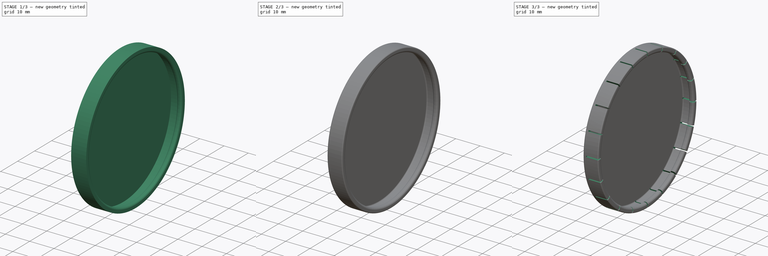
[diagram: build sequence overview — one tinted view per stage of 3, left to right]
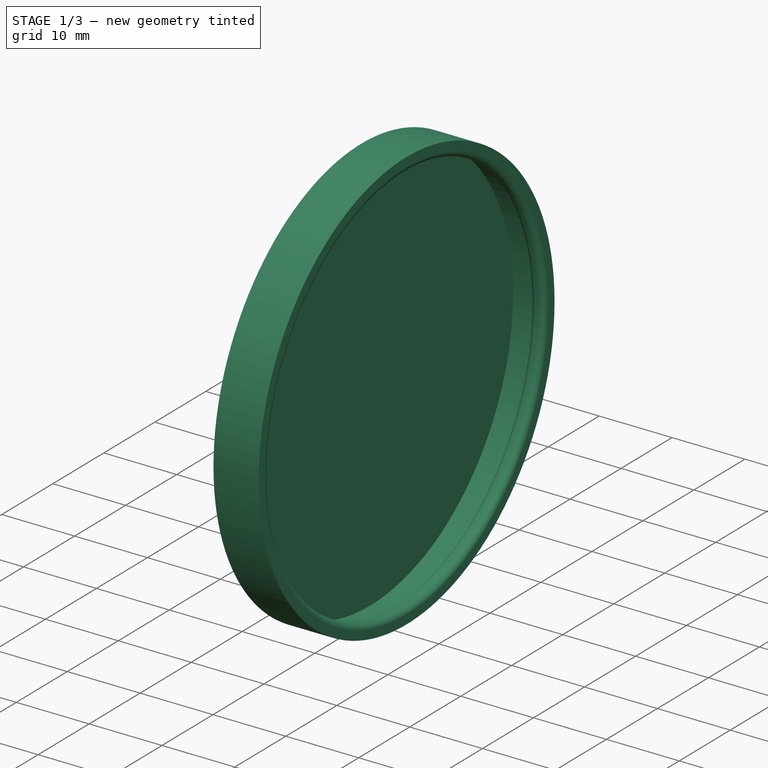
[diagram: stage 1 of 3 — iso view after this stage's code; geometry added in this stage tinted green]
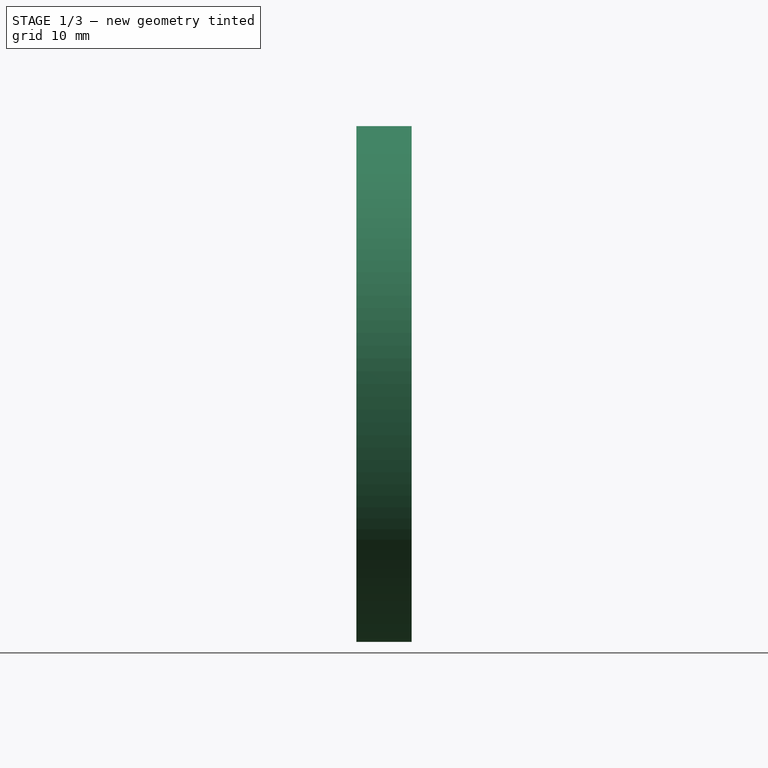
[diagram: stage 1 of 3 — front view after this stage's code; geometry added in this stage tinted green]
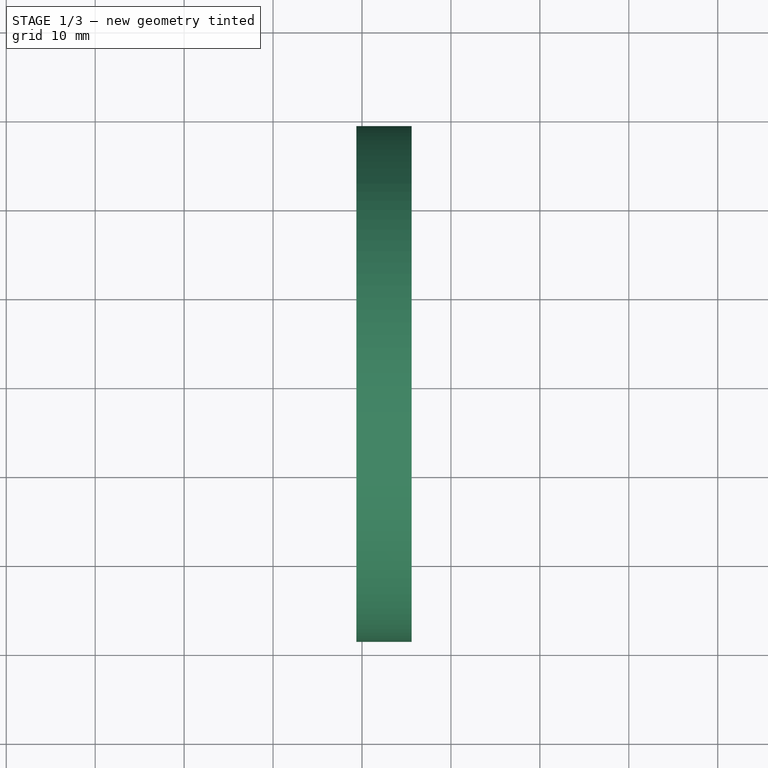
[diagram: stage 1 of 3 — top view after this stage's code; geometry added in this stage tinted green]
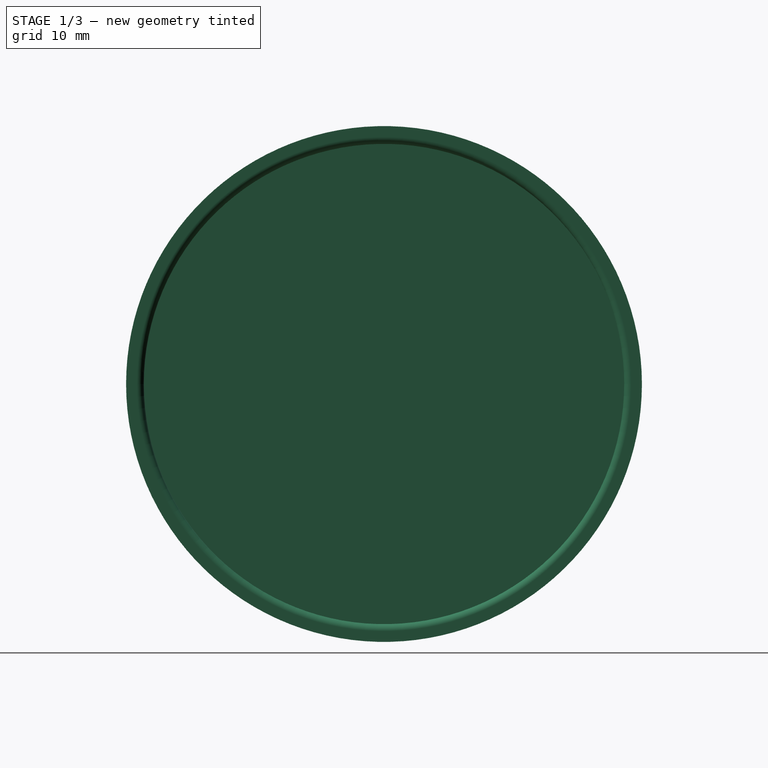
[diagram: stage 1 of 3 — right view after this stage's code; geometry added in this stage tinted green]
FCSTD DOCUMENT  (FreeCAD 1.2R20251223 (Git shallow))
Label: washer fluid reservoir peugeot 206
License: All rights reserved
objects: Part::Feature×8, Sketcher::SketchObject×4, PartDesign::Fillet×3, PartDesign::Pocket×2, App::Point×1, PartDesign::Revolution×1, Part::Compound×1, PartDesign::PolarPattern×1, PartDesign::Body×1
note: 38 computed .brp shape members not serialized (recipe doc carries the construction recipe); baked Part::Feature solids carry a one-line shape summary decoded from their .brp

FEATURE [App::Point] Origin001  label="Odniesienie położenia"
  Role = Origin
FEATURE [Sketcher::SketchObject] Sketch
  ArcFitTolerance = 1e-06
  AttachmentSupport = -> [Origin]
  ExternalTypes = [0]
  FullyConstrained = false
  MakeInternals = false
  MapMode = 5
  sketch-geometry (8):
    g0: LineSegment StartX=-10.626 StartY=29 StartZ=0 EndX=-10.626 EndY=0 EndZ=0
    g1: LineSegment StartX=-10.626 StartY=29 StartZ=0 EndX=-4.42602 EndY=29 EndZ=0
    g2: LineSegment StartX=-4.42602 StartY=29 StartZ=0 EndX=-4.42602 EndY=27 EndZ=0
    g3: LineSegment StartX=-4.42602 StartY=27 StartZ=0 EndX=-6.42602 EndY=27 EndZ=0
    g4: LineSegment StartX=-6.42602 StartY=27 StartZ=0 EndX=-6.42602 EndY=28 EndZ=0
    g5: LineSegment StartX=-6.42602 StartY=28 StartZ=0 EndX=-9.42602 EndY=28 EndZ=0
    g6: LineSegment StartX=-9.42602 StartY=28 StartZ=0 EndX=-9.42602 EndY=0 EndZ=0
    g7: LineSegment StartX=-9.42602 StartY=0 StartZ=0 EndX=-10.626 EndY=0 EndZ=0
  constraints (23):
    c: PointOnObject(g0,g-1)
    c: Vertical(g0)
    c: Coincident(g1,g0)
    c: Horizontal(g1)
    c: Coincident(g2,g1)
    c: Vertical(g2)
    c: Coincident(g3,g2)
    c: Horizontal(g3)
    c: Coincident(g4,g3)
    c: Vertical(g4)
    c: Coincident(g5,g4)
    c: Horizontal(g5)
    c: Coincident(g6,g5)
    c: PointOnObject(g6,g-1)
    c: Vertical(g6)
    c: Coincident(g7,g6)
    c: Coincident(g7,g0)
    c: Distance(g-1,g3) = 27
    c: DistanceX(g7,g7) = 1.2
    c: DistanceX(g5,g5) = 3
    c: DistanceX(g3,g3) = 2
    c: Distance(g4,g4) = 1
    c: Distance(g1,g5) = 1
FEATURE [PartDesign::Revolution] Revolution
  Angle = 360
  Angle2 = 0
  Axis = (1,0,0)
  Base = (0,0,0)
  FuseOrder = 0
  Profile = -> Sketch
  ReferenceAxis = -> Sketch [H_Axis]
  Refine = true
  Suppressed = false
  Type = 0
FEATURE [PartDesign::Fillet] Fillet
  Base = -> Revolution [Edge6,Edge5]
  BaseFeature = -> Revolution
  Radius = 0.8
  Refine = true
  SupportTransform = false
  Suppressed = false
  UseAllEdges = false
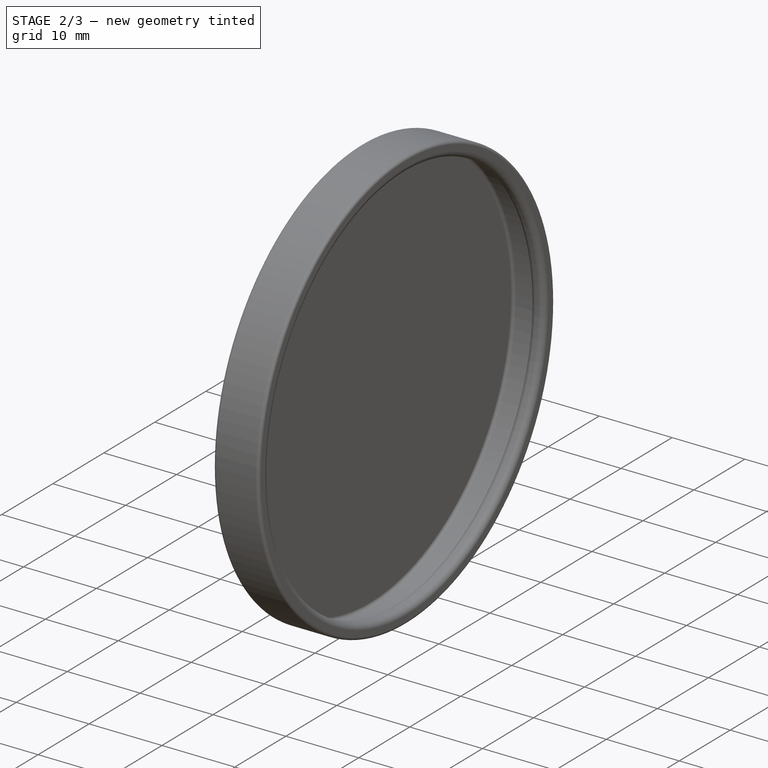
[diagram: stage 2 of 3 — iso view after this stage's code; geometry added in this stage tinted green]
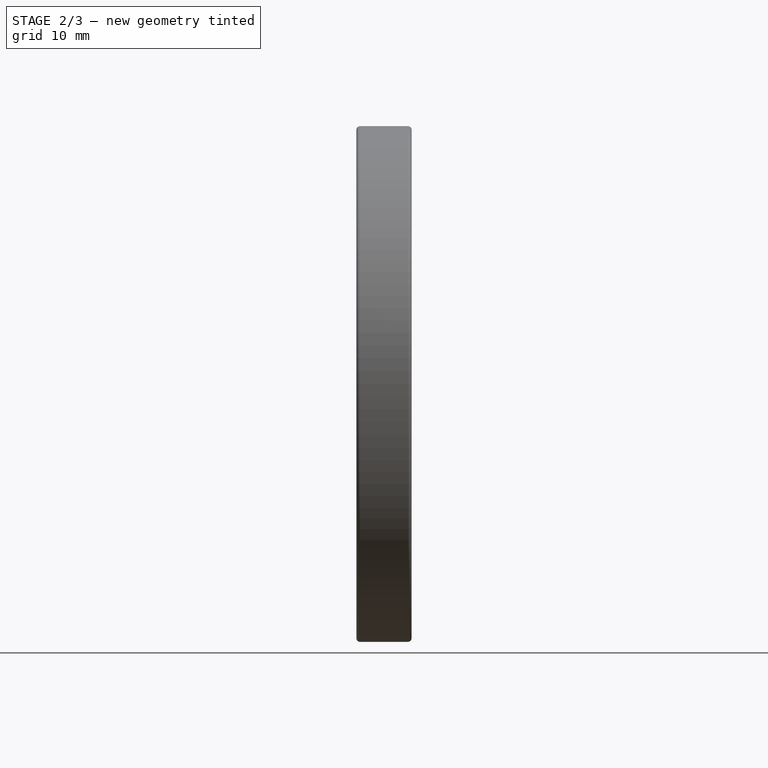
[diagram: stage 2 of 3 — front view after this stage's code; geometry added in this stage tinted green]
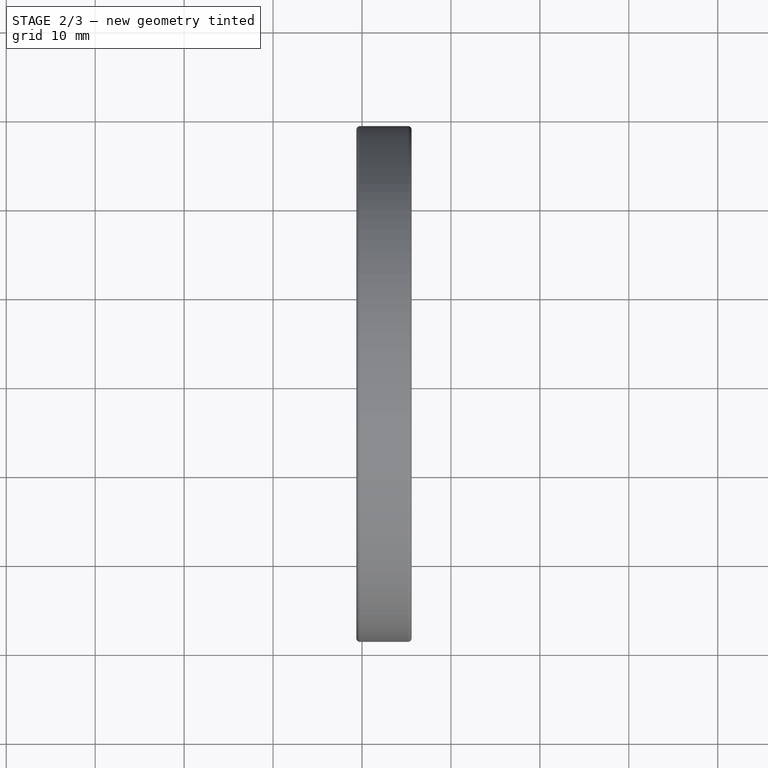
[diagram: stage 2 of 3 — top view after this stage's code; geometry added in this stage tinted green]
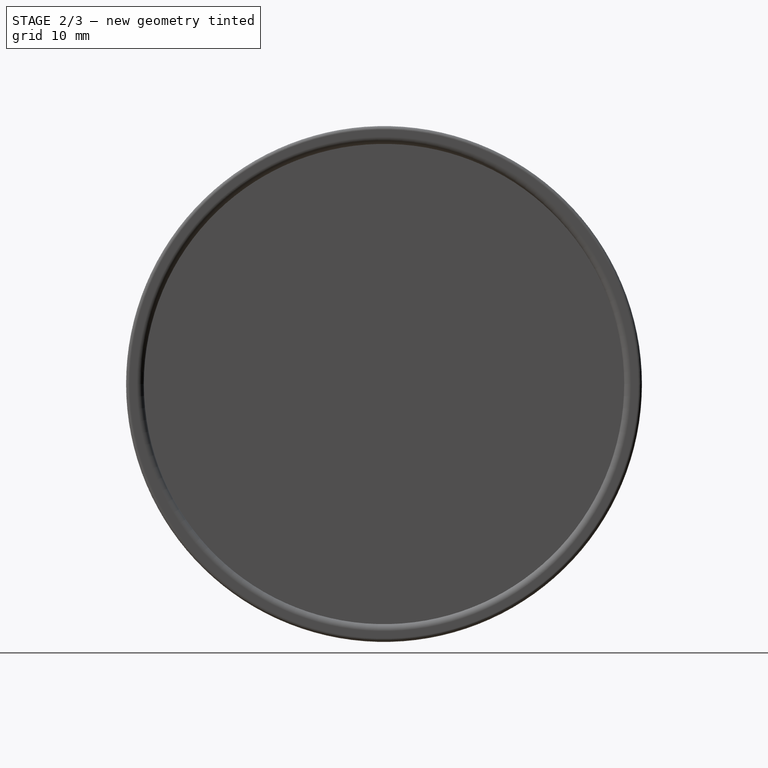
[diagram: stage 2 of 3 — right view after this stage's code; geometry added in this stage tinted green]
FEATURE [PartDesign::Fillet] Fillet001
  Base = -> Fillet [Edge5]
  BaseFeature = -> Fillet
  Radius = 0.4
  Refine = true
  SupportTransform = false
  Suppressed = false
  UseAllEdges = false
FEATURE [PartDesign::Fillet] Fillet002
  Base = -> Fillet001 [Edge14,Edge13]
  BaseFeature = -> Fillet001
  Radius = 0.4
  Refine = true
  SupportTransform = false
  Suppressed = false
  UseAllEdges = false
FEATURE [Part::Feature] Path005
  shape: bbox 212.3 x 126.2 x 2e-07 mm, 1 faces, 0 solids (baked)
FEATURE [Part::Feature] Polyline001
  shape: bbox 12.18 x 16.64 x 2e-07 mm, 1 faces, 0 solids (baked)
FEATURE [Part::Feature] Path004
  shape: bbox 31.79 x 20.24 x 2e-07 mm, 1 faces, 0 solids (baked)
FEATURE [Part::Feature] Polyline
  shape: bbox 12.18 x 29.46 x 2e-07 mm, 1 faces, 0 solids (baked)
FEATURE [Part::Feature] Path003
  shape: bbox 15.63 x 18.95 x 2e-07 mm, 1 faces, 0 solids (baked)
FEATURE [Part::Feature] Path002
  shape: bbox 46.12 x 28.04 x 2e-07 mm, 1 faces, 0 solids (baked)
FEATURE [Part::Feature] Path001
  shape: bbox 31.79 x 20.24 x 2e-07 mm, 1 faces, 0 solids (baked)
FEATURE [Part::Feature] Path
  shape: bbox 15.63 x 18.95 x 2e-07 mm, 1 faces, 0 solids (baked)
FEATURE [Part::Compound] Compound
  Links = -> [Path005,Polyline001,Path004,Polyline,Path003,Path002,Path001,Path]
  Placement = pos=(-20,123,99) rot=(0,1,0;1.5708rad)
FEATURE [Sketcher::SketchObject] Sketch002
  ArcFitTolerance = 1e-06
  ExternalTypes = [0]
  FullyConstrained = false
  MakeInternals = false
  Placement = pos=(-53,0,-1.18e-14) rot=(0,1,0;1.5708rad)
  sketch-geometry (66):
    g0: BSplineCurve PolesCount=2 KnotsCount=2 Degree=1 IsPeriodic=0
    g1: BSplineCurve PolesCount=4 KnotsCount=2 Degree=3 IsPeriodic=0
    g2: BSplineCurve PolesCount=2 KnotsCount=2 Degree=1 IsPeriodic=0
    g3: BSplineCurve PolesCount=4 KnotsCount=2 Degree=3 IsPeriodic=0
    g4: BSplineCurve PolesCount=2 KnotsCount=2 Degree=1 IsPeriodic=0
    g5: BSplineCurve PolesCount=2 KnotsCount=2 Degree=1 IsPeriodic=0
    g6: BSplineCurve PolesCount=4 KnotsCount=2 Degree=3 IsPeriodic=0
    g7: BSplineCurve PolesCount=4 KnotsCount=2 Degree=3 IsPeriodic=0
    g8: BSplineCurve PolesCount=4 KnotsCount=2 Degree=3 IsPeriodic=0
    g9: BSplineCurve PolesCount=4 KnotsCount=2 Degree=3 IsPeriodic=0
    g10: BSplineCurve PolesCount=4 KnotsCount=2 Degree=3 IsPeriodic=0
    g11: BSplineCurve PolesCount=4 KnotsCount=2 Degree=3 IsPeriodic=0
    g12: BSplineCurve PolesCount=2 KnotsCount=2 Degree=1 IsPeriodic=0
    g13: BSplineCurve PolesCount=4 KnotsCount=2 Degree=3 IsPeriodic=0
    g14: BSplineCurve PolesCount=4 KnotsCount=2 Degree=3 IsPeriodic=0
    g15: BSplineCurve PolesCount=2 KnotsCount=2 Degree=1 IsPeriodic=0
    g16: BSplineCurve PolesCount=4 KnotsCount=2 Degree=3 IsPeriodic=0
    g17: BSplineCurve PolesCount=2 KnotsCount=2 Degree=1 IsPeriodic=0
    g18: BSplineCurve PolesCount=2 KnotsCount=2 Degree=1 IsPeriodic=0
    g19: BSplineCurve PolesCount=2 KnotsCount=2 Degree=1 IsPeriodic=0
    g20: BSplineCurve PolesCount=2 KnotsCount=2 Degree=1 IsPeriodic=0
    g21: BSplineCurve PolesCount=4 KnotsCount=2 Degree=3 IsPeriodic=0
    g22: BSplineCurve PolesCount=2 KnotsCount=2 Degree=1 IsPeriodic=0
    g23: BSplineCurve PolesCount=4 KnotsCount=2 Degree=3 IsPeriodic=0
    g24: BSplineCurve PolesCount=4 KnotsCount=2 Degree=3 IsPeriodic=0
    g25: BSplineCurve PolesCount=2 KnotsCount=2 Degree=1 IsPeriodic=0
    g26: BSplineCurve PolesCount=2 KnotsCount=2 Degree=1 IsPeriodic=0
    g27: BSplineCurve PolesCount=2 KnotsCount=2 Degree=1 IsPeriodic=0
    g28: BSplineCurve PolesCount=2 KnotsCount=2 Degree=1 IsPeriodic=0
    g29: BSplineCurve PolesCount=2 KnotsCount=2 Degree=1 IsPeriodic=0
    g30: BSplineCurve PolesCount=2 KnotsCount=2 Degree=1 IsPeriodic=0
    g31: BSplineCurve PolesCount=4 KnotsCount=2 Degree=3 IsPeriodic=0
    g32: BSplineCurve PolesCount=2 KnotsCount=2 Degree=1 IsPeriodic=0
    g33: BSplineCurve PolesCount=4 KnotsCount=2 Degree=3 IsPeriodic=0
    g34: BSplineCurve PolesCount=4 KnotsCount=2 Degree=3 IsPeriodic=0
    g35: BSplineCurve PolesCount=2 KnotsCount=2 Degree=1 IsPeriodic=0
    g36: BSplineCurve PolesCount=4 KnotsCount=2 Degree=3 IsPeriodic=0
    g37: BSplineCurve PolesCount=2 KnotsCount=2 Degree=1 IsPeriodic=0
    g38: BSplineCurve PolesCount=2 KnotsCount=2 Degree=1 IsPeriodic=0
    g39: BSplineCurve PolesCount=2 KnotsCount=2 Degree=1 IsPeriodic=0
    g40: BSplineCurve PolesCount=2 KnotsCount=2 Degree=1 IsPeriodic=0
    g41: BSplineCurve PolesCount=2 KnotsCount=2 Degree=1 IsPeriodic=0
    g42: BSplineCurve PolesCount=2 KnotsCount=2 Degree=1 IsPeriodic=0
    g43: BSplineCurve PolesCount=2 KnotsCount=2 Degree=1 IsPeriodic=0
    g44: BSplineCurve PolesCount=2 KnotsCount=2 Degree=1 IsPeriodic=0
    g45: BSplineCurve PolesCount=2 KnotsCount=2 Degree=1 IsPeriodic=0
    g46: BSplineCurve PolesCount=4 KnotsCount=2 Degree=3 IsPeriodic=0
    g47: BSplineCurve PolesCount=2 KnotsCount=2 Degree=1 IsPeriodic=0
    g48: BSplineCurve PolesCount=4 KnotsCount=2 Degree=3 IsPeriodic=0
    g49: BSplineCurve PolesCount=2 KnotsCount=2 Degree=1 IsPeriodic=0
    g50: BSplineCurve PolesCount=4 KnotsCount=2 Degree=3 IsPeriodic=0
    g51: BSplineCurve PolesCount=2 KnotsCount=2 Degree=1 IsPeriodic=0
    g52: BSplineCurve PolesCount=4 KnotsCount=2 Degree=3 IsPeriodic=0
    g53: BSplineCurve PolesCount=4 KnotsCount=2 Degree=3 IsPeriodic=0
    g54: BSplineCurve PolesCount=2 KnotsCount=2 Degree=1 IsPeriodic=0
    g55: BSplineCurve PolesCount=4 KnotsCount=2 Degree=3 IsPeriodic=0
    g56: BSplineCurve PolesCount=4 KnotsCount=2 Degree=3 IsPeriodic=0
    g57: BSplineCurve PolesCount=2 KnotsCount=2 Degree=1 IsPeriodic=0
    g58: BSplineCurve PolesCount=4 KnotsCount=2 Degree=3 IsPeriodic=0
    g59: BSplineCurve PolesCount=4 KnotsCount=2 Degree=3 IsPeriodic=0
    g60: BSplineCurve PolesCount=2 KnotsCount=2 Degree=1 IsPeriodic=0
    g61: BSplineCurve PolesCount=4 KnotsCount=2 Degree=3 IsPeriodic=0
    g62: BSplineCurve PolesCount=2 KnotsCount=2 Degree=1 IsPeriodic=0
    g63: BSplineCurve PolesCount=4 KnotsCount=2 Degree=3 IsPeriodic=0
    g64: BSplineCurve PolesCount=2 KnotsCount=2 Degree=1 IsPeriodic=0
    g65: BSplineCurve PolesCount=4 KnotsCount=2 Degree=3 IsPeriodic=0
  constraints (66):
    c: Coincident(g8,g10)
    c: Coincident(g10,g12)
    c: Coincident(g6,g8)
    c: Coincident(g21,g22)
    c: Coincident(g63,g64)
    c: Coincident(g62,g63)
    c: Coincident(g59,g60)
    c: Coincident(g64,g65)
    c: Coincident(g62,g65)
    c: Coincident(g60,g61)
    c: Coincident(g12,g14)
    c: Coincident(g22,g23)
    c: Coincident(g13,g14)
    c: Coincident(g58,g59)
    c: Coincident(g56,g61)
    c: Coincident(g56,g57)
    c: Coincident(g57,g58)
    c: Coincident(g54,g55)
    c: Coincident(g53,g54)
    c: Coincident(g49,g55)
    c: Coincident(g20,g21)
    c: Coincident(g19,g20)
    c: Coincident(g37,g38)
    c: Coincident(g38,g39)
    c: Coincident(g25,g26)
    c: Coincident(g26,g27)
    c: Coincident(g2,g4)
    c: Coincident(g4,g6)
    c: Coincident(g43,g44)
    c: Coincident(g37,g44)
    c: Coincident(g39,g40)
    c: Coincident(g25,g30)
    c: Coincident(g23,g24)
    c: Coincident(g11,g13)
    c: Coincident(g52,g53)
    c: Coincident(g18,g19)
    c: Coincident(g40,g41)
    c: Coincident(g29,g30)
    c: Coincident(g27,g28)
    c: Coincident(g16,g17)
    c: Coincident(g17,g18)
    c: Coincident(g42,g43)
    c: Coincident(g41,g42)
    c: Coincident(g28,g29)
    c: Coincident(g0,g2)
    c: Coincident(g0,g1)
    c: Coincident(g49,g50)
    c: Coincident(g51,g52)
    c: Coincident(g50,g51)
    c: Coincident(g34,g35)
    c: Coincident(g35,g36)
    c: Coincident(g33,g34)
    c: Coincident(g31,g36)
    c: Coincident(g9,g11)
    c: Coincident(g15,g24)
    c: Coincident(g7,g9)
    c: Coincident(g5,g7)
    c: Coincident(g31,g32)
    c: Coincident(g47,g48)
    c: Coincident(g45,g48)
    c: Coincident(g32,g33)
    c: Coincident(g46,g47)
    c: Coincident(g45,g46)
    c: Coincident(g15,g16)
    c: Coincident(g1,g3)
    c: Coincident(g3,g5)
FEATURE [Sketcher::SketchObject] Sketch003
  ArcFitTolerance = 1e-06
  ExternalTypes = [0]
  FullyConstrained = false
  MakeInternals = false
  Placement = pos=(-11,0,-1.18e-14) rot=(0,1,0;1.5708rad)
  sketch-geometry (66):
    g0: BSplineCurve PolesCount=2 KnotsCount=2 Degree=1 IsPeriodic=0
    g1: BSplineCurve PolesCount=4 KnotsCount=2 Degree=3 IsPeriodic=0
    g2: BSplineCurve PolesCount=2 KnotsCount=2 Degree=1 IsPeriodic=0
    g3: BSplineCurve PolesCount=4 KnotsCount=2 Degree=3 IsPeriodic=0
    g4: BSplineCurve PolesCount=2 KnotsCount=2 Degree=1 IsPeriodic=0
    g5: BSplineCurve PolesCount=2 KnotsCount=2 Degree=1 IsPeriodic=0
    g6: BSplineCurve PolesCount=4 KnotsCount=2 Degree=3 IsPeriodic=0
    g7: BSplineCurve PolesCount=4 KnotsCount=2 Degree=3 IsPeriodic=0
    g8: BSplineCurve PolesCount=4 KnotsCount=2 Degree=3 IsPeriodic=0
    g9: BSplineCurve PolesCount=4 KnotsCount=2 Degree=3 IsPeriodic=0
    g10: BSplineCurve PolesCount=4 KnotsCount=2 Degree=3 IsPeriodic=0
    g11: BSplineCurve PolesCount=4 KnotsCount=2 Degree=3 IsPeriodic=0
    g12: BSplineCurve PolesCount=2 KnotsCount=2 Degree=1 IsPeriodic=0
    g13: BSplineCurve PolesCount=4 KnotsCount=2 Degree=3 IsPeriodic=0
    g14: BSplineCurve PolesCount=4 KnotsCount=2 Degree=3 IsPeriodic=0
    g15: BSplineCurve PolesCount=2 KnotsCount=2 Degree=1 IsPeriodic=0
    g16: BSplineCurve PolesCount=4 KnotsCount=2 Degree=3 IsPeriodic=0
    g17: BSplineCurve PolesCount=2 KnotsCount=2 Degree=1 IsPeriodic=0
    g18: BSplineCurve PolesCount=2 KnotsCount=2 Degree=1 IsPeriodic=0
    g19: BSplineCurve PolesCount=2 KnotsCount=2 Degree=1 IsPeriodic=0
    g20: BSplineCurve PolesCount=2 KnotsCount=2 Degree=1 IsPeriodic=0
    g21: BSplineCurve PolesCount=4 KnotsCount=2 Degree=3 IsPeriodic=0
    g22: BSplineCurve PolesCount=2 KnotsCount=2 Degree=1 IsPeriodic=0
    g23: BSplineCurve PolesCount=4 KnotsCount=2 Degree=3 IsPeriodic=0
    g24: BSplineCurve PolesCount=4 KnotsCount=2 Degree=3 IsPeriodic=0
    g25: BSplineCurve PolesCount=2 KnotsCount=2 Degree=1 IsPeriodic=0
    g26: BSplineCurve PolesCount=2 KnotsCount=2 Degree=1 IsPeriodic=0
    g27: BSplineCurve PolesCount=2 KnotsCount=2 Degree=1 IsPeriodic=0
    g28: BSplineCurve PolesCount=2 KnotsCount=2 Degree=1 IsPeriodic=0
    g29: BSplineCurve PolesCount=2 KnotsCount=2 Degree=1 IsPeriodic=0
    g30: BSplineCurve PolesCount=2 KnotsCount=2 Degree=1 IsPeriodic=0
    g31: BSplineCurve PolesCount=4 KnotsCount=2 Degree=3 IsPeriodic=0
    g32: BSplineCurve PolesCount=2 KnotsCount=2 Degree=1 IsPeriodic=0
    g33: BSplineCurve PolesCount=4 KnotsCount=2 Degree=3 IsPeriodic=0
    g34: BSplineCurve PolesCount=4 KnotsCount=2 Degree=3 IsPeriodic=0
    g35: BSplineCurve PolesCount=2 KnotsCount=2 Degree=1 IsPeriodic=0
    g36: BSplineCurve PolesCount=4 KnotsCount=2 Degree=3 IsPeriodic=0
    g37: BSplineCurve PolesCount=2 KnotsCount=2 Degree=1 IsPeriodic=0
    g38: BSplineCurve PolesCount=2 KnotsCount=2 Degree=1 IsPeriodic=0
    g39: BSplineCurve PolesCount=2 KnotsCount=2 Degree=1 IsPeriodic=0
    g40: BSplineCurve PolesCount=2 KnotsCount=2 Degree=1 IsPeriodic=0
    g41: BSplineCurve PolesCount=2 KnotsCount=2 Degree=1 IsPeriodic=0
    g42: BSplineCurve PolesCount=2 KnotsCount=2 Degree=1 IsPeriodic=0
    g43: BSplineCurve PolesCount=2 KnotsCount=2 Degree=1 IsPeriodic=0
    g44: BSplineCurve PolesCount=2 KnotsCount=2 Degree=1 IsPeriodic=0
    g45: BSplineCurve PolesCount=2 KnotsCount=2 Degree=1 IsPeriodic=0
    g46: BSplineCurve PolesCount=4 KnotsCount=2 Degree=3 IsPeriodic=0
    g47: BSplineCurve PolesCount=2 KnotsCount=2 Degree=1 IsPeriodic=0
    g48: BSplineCurve PolesCount=4 KnotsCount=2 Degree=3 IsPeriodic=0
    g49: BSplineCurve PolesCount=2 KnotsCount=2 Degree=1 IsPeriodic=0
    g50: BSplineCurve PolesCount=4 KnotsCount=2 Degree=3 IsPeriodic=0
    g51: BSplineCurve PolesCount=2 KnotsCount=2 Degree=1 IsPeriodic=0
    g52: BSplineCurve PolesCount=4 KnotsCount=2 Degree=3 IsPeriodic=0
    g53: BSplineCurve PolesCount=4 KnotsCount=2 Degree=3 IsPeriodic=0
    g54: BSplineCurve PolesCount=2 KnotsCount=2 Degree=1 IsPeriodic=0
    g55: BSplineCurve PolesCount=4 KnotsCount=2 Degree=3 IsPeriodic=0
    g56: BSplineCurve PolesCount=4 KnotsCount=2 Degree=3 IsPeriodic=0
    g57: BSplineCurve PolesCount=2 KnotsCount=2 Degree=1 IsPeriodic=0
    g58: BSplineCurve PolesCount=4 KnotsCount=2 Degree=3 IsPeriodic=0
    g59: BSplineCurve PolesCount=4 KnotsCount=2 Degree=3 IsPeriodic=0
    g60: BSplineCurve PolesCount=2 KnotsCount=2 Degree=1 IsPeriodic=0
    g61: BSplineCurve PolesCount=4 KnotsCount=2 Degree=3 IsPeriodic=0
    g62: BSplineCurve PolesCount=2 KnotsCount=2 Degree=1 IsPeriodic=0
    g63: BSplineCurve PolesCount=4 KnotsCount=2 Degree=3 IsPeriodic=0
    g64: BSplineCurve PolesCount=2 KnotsCount=2 Degree=1 IsPeriodic=0
    g65: BSplineCurve PolesCount=4 KnotsCount=2 Degree=3 IsPeriodic=0
  constraints (66):
    c: Coincident(g8,g10)
    c: Coincident(g10,g12)
    c: Coincident(g6,g8)
    c: Coincident(g21,g22)
    c: Coincident(g63,g64)
    c: Coincident(g62,g63)
    c: Coincident(g59,g60)
    c: Coincident(g64,g65)
    c: Coincident(g62,g65)
    c: Coincident(g60,g61)
    c: Coincident(g12,g14)
    c: Coincident(g22,g23)
    c: Coincident(g13,g14)
    c: Coincident(g58,g59)
    c: Coincident(g56,g61)
    c: Coincident(g56,g57)
    c: Coincident(g57,g58)
    c: Coincident(g54,g55)
    c: Coincident(g53,g54)
    c: Coincident(g49,g55)
    c: Coincident(g20,g21)
    c: Coincident(g19,g20)
    c: Coincident(g37,g38)
    c: Coincident(g38,g39)
    c: Coincident(g25,g26)
    c: Coincident(g26,g27)
    c: Coincident(g2,g4)
    c: Coincident(g4,g6)
    c: Coincident(g43,g44)
    c: Coincident(g37,g44)
    c: Coincident(g39,g40)
    c: Coincident(g25,g30)
    c: Coincident(g23,g24)
    c: Coincident(g11,g13)
    c: Coincident(g52,g53)
    c: Coincident(g18,g19)
    c: Coincident(g40,g41)
    c: Coincident(g29,g30)
    c: Coincident(g27,g28)
    c: Coincident(g16,g17)
    c: Coincident(g17,g18)
    c: Coincident(g42,g43)
    c: Coincident(g41,g42)
    c: Coincident(g28,g29)
    c: Coincident(g0,g2)
    c: Coincident(g0,g1)
    c: Coincident(g49,g50)
    c: Coincident(g51,g52)
    c: Coincident(g50,g51)
    c: Coincident(g34,g35)
    c: Coincident(g35,g36)
    c: Coincident(g33,g34)
    c: Coincident(g31,g36)
    c: Coincident(g9,g11)
    c: Coincident(g15,g24)
    c: Coincident(g7,g9)
    c: Coincident(g5,g7)
    c: Coincident(g31,g32)
    c: Coincident(g47,g48)
    c: Coincident(g45,g48)
    c: Coincident(g32,g33)
    c: Coincident(g46,g47)
    c: Coincident(g45,g46)
    c: Coincident(g15,g16)
    c: Coincident(g1,g3)
    c: Coincident(g3,g5)
FEATURE [PartDesign::Pocket] Pocket
  BaseFeature = -> Fillet002
  Direction = (-1,0,0)
  Length = 0.8
  Length2 = 5
  Profile = -> Sketch003
  ReferenceAxis = -> Sketch003 [N_Axis]
  Refine = true
  Reversed = true
  SideType = 0
  Suppressed = false
  Type = 0
  Type2 = 0
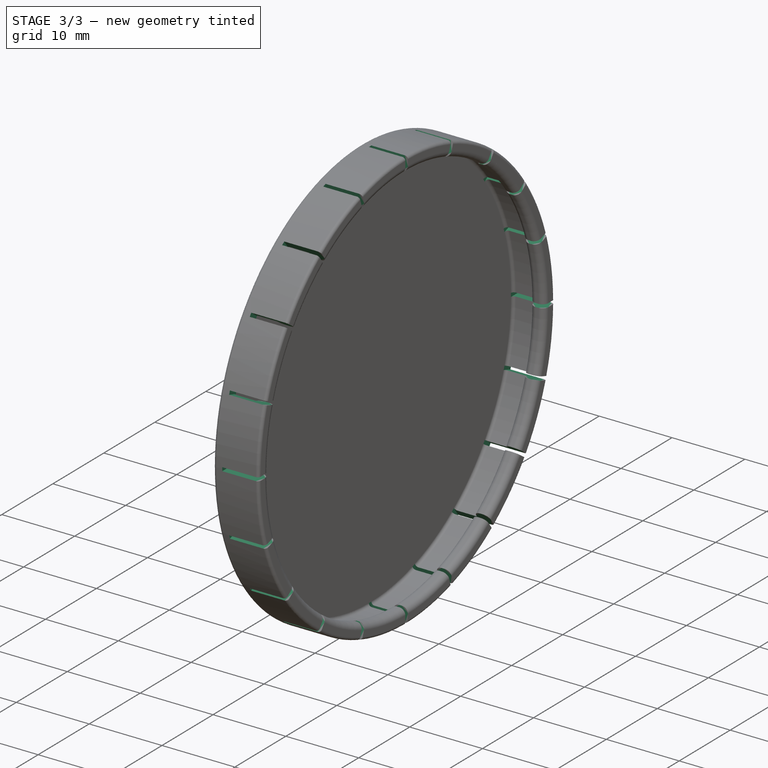
[diagram: stage 3 of 3 — iso view after this stage's code; geometry added in this stage tinted green]
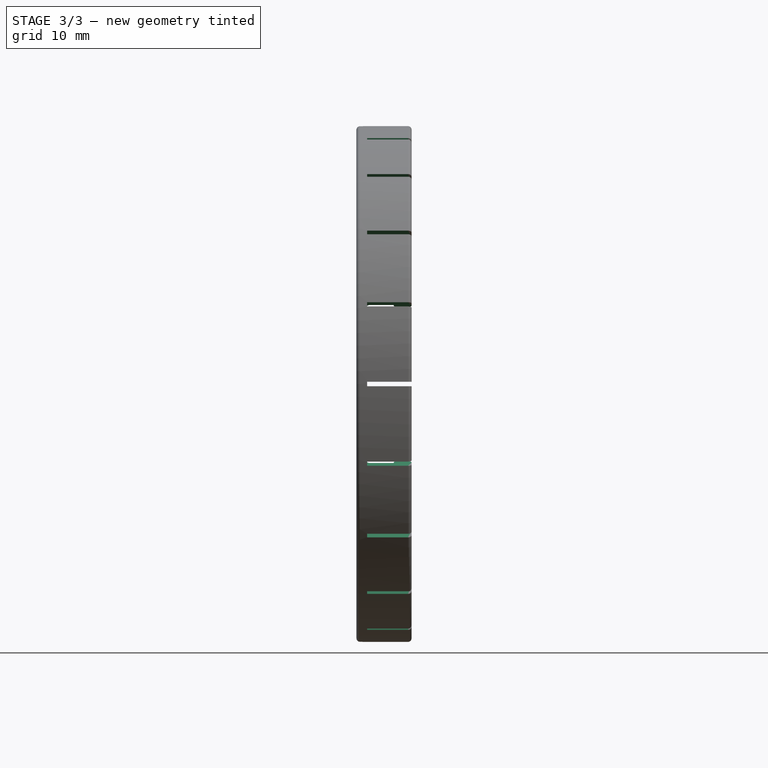
[diagram: stage 3 of 3 — front view after this stage's code; geometry added in this stage tinted green]
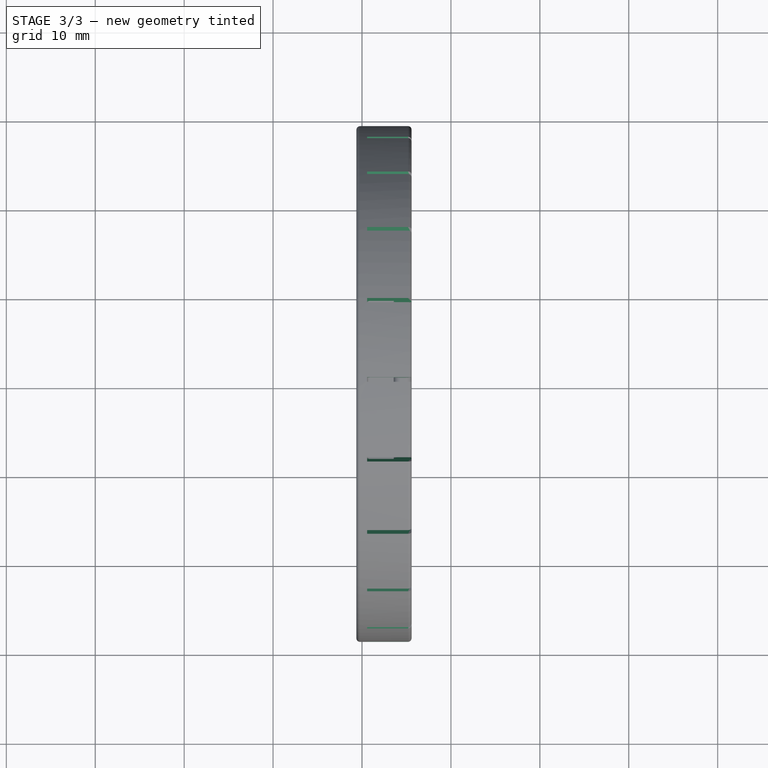
[diagram: stage 3 of 3 — top view after this stage's code; geometry added in this stage tinted green]
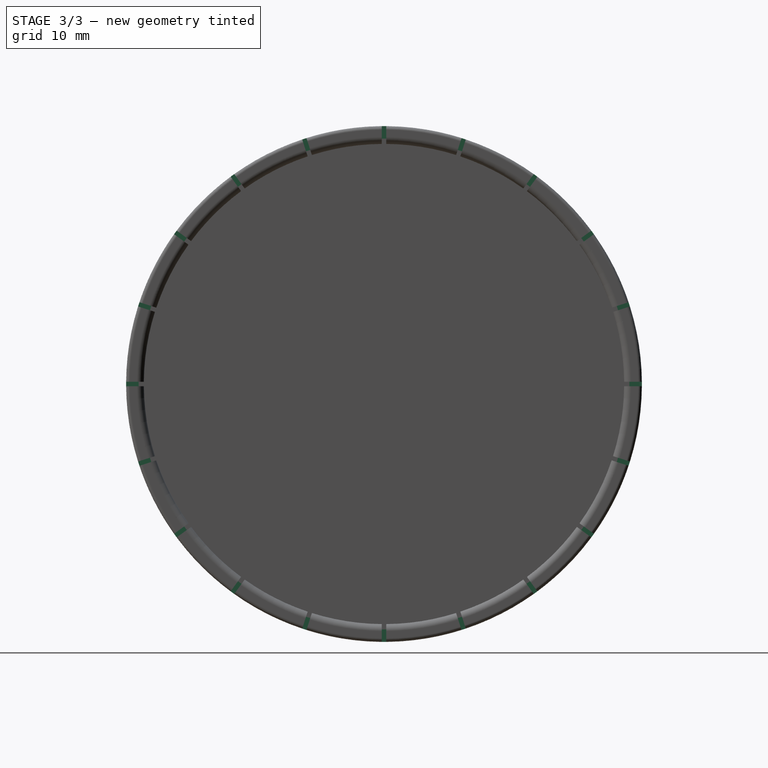
[diagram: stage 3 of 3 — right view after this stage's code; geometry added in this stage tinted green]
FEATURE [Sketcher::SketchObject] Sketch004
  ArcFitTolerance = 1e-06
  AttachmentSupport = -> [Pocket]
  ExternalTypes = [0]
  FullyConstrained = false
  MakeInternals = false
  MapMode = 5
  Placement = pos=(-4.42602,0,0) rot=(0.57735,0.57735,0.57735;2.0944rad)
  sketch-geometry (5):
    g0: LineSegment StartX=-0.25 StartY=-29.6948 StartZ=0 EndX=0.25 EndY=-29.6948 EndZ=0
    g1: LineSegment StartX=0.25 StartY=-29.6948 StartZ=0 EndX=0.25 EndY=-26.7002 EndZ=0
    g2: LineSegment StartX=0.25 StartY=-26.7002 StartZ=0 EndX=-0.25 EndY=-26.7002 EndZ=0
    g3: LineSegment StartX=-0.25 StartY=-26.7002 StartZ=0 EndX=-0.25 EndY=-29.6948 EndZ=0
    g4: GeomPoint [constr] X=0 Y=-28.1975 Z=0
  constraints (11):
    c: Coincident(g0,g1)
    c: Coincident(g1,g2)
    c: Coincident(g2,g3)
    c: Coincident(g3,g0)
    c: Horizontal(g0)
    c: Horizontal(g2)
    c: Vertical(g1)
    c: Vertical(g3)
    c: Symmetric(g2,g0,g4)
    c: PointOnObject(g4,g-2)
    c: Distance(g2,g2) = 0.5
FEATURE [PartDesign::Pocket] Pocket001
  BaseFeature = -> Pocket
  Direction = (-1,0,0)
  Length = 5
  Length2 = 5
  Profile = -> Sketch004
  ReferenceAxis = -> Sketch004 [N_Axis]
  Refine = true
  SideType = 0
  Suppressed = false
  Type = 3
  Type2 = 0
  UpToFace = -> Pocket [Face70]
FEATURE [PartDesign::PolarPattern] PolarPattern
  Angle = 360
  Axis = -> Sketch004 [N_Axis]
  BaseFeature = -> Pocket001
  Mode = 0
  Occurrences = 20
  Offset = 120
  Originals = -> [Pocket001]
  Refine = true
  SpacingPattern = [0]
  Spacings = [-1,-1,-1,-1,-1,-1,-1,-1,-1,-1,-1,-1,-1,-1,-1,-1,-1,-1,-1]
  Suppressed = false
  TransformMode = 0
FEATURE [PartDesign::Body] Body
  AllowCompound = true
  Group = -> [Sketch,Revolution,Fillet,Fillet001,Fillet002,Sketch003,Pocket,Sketch004,Pocket001,PolarPattern]
  Origin = -> Origin
  Tip = -> PolarPattern
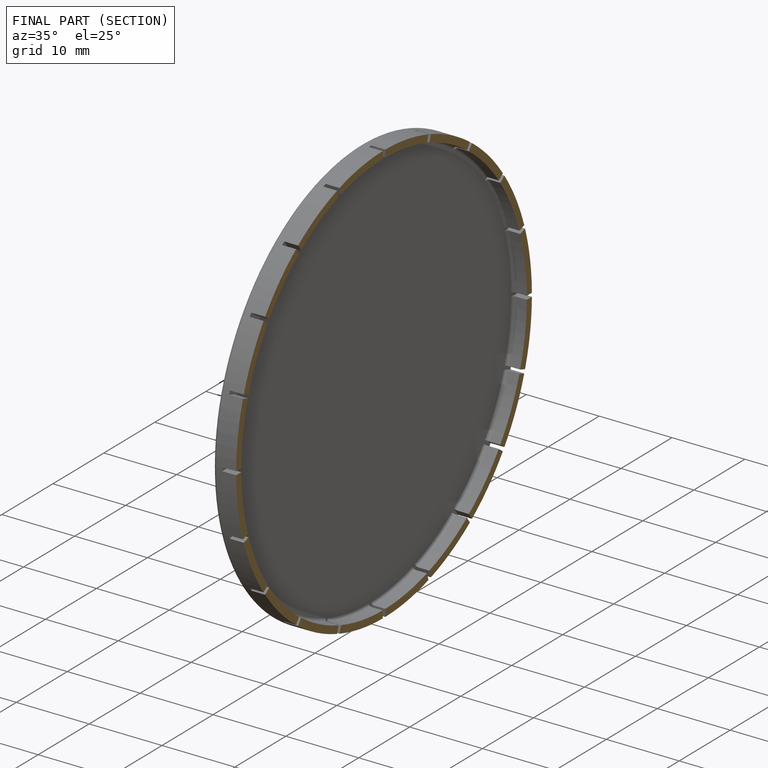
[diagram: finished part — half-section view (interior)]
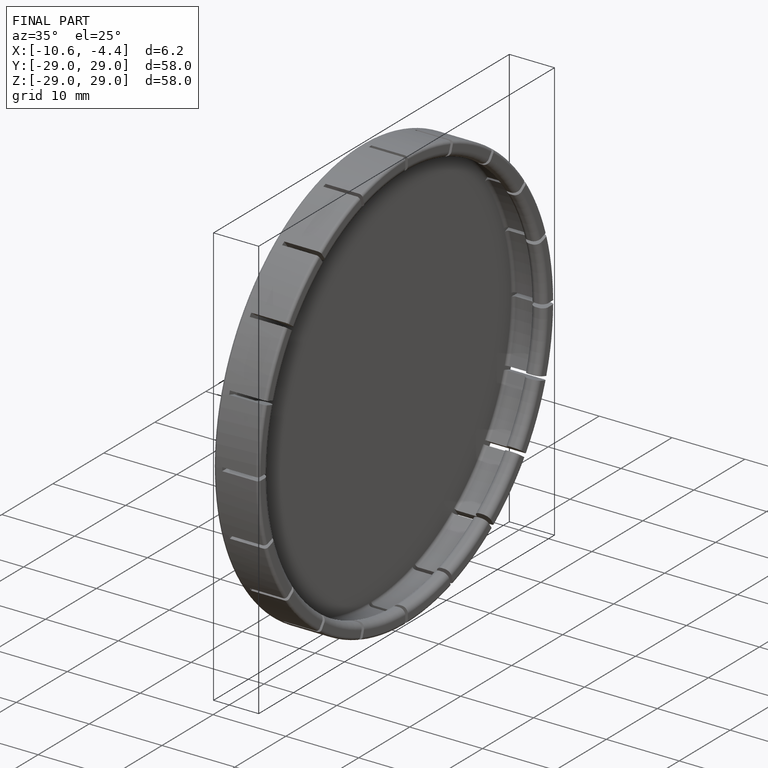
[diagram: finished part — iso view with bounding-box wireframe]
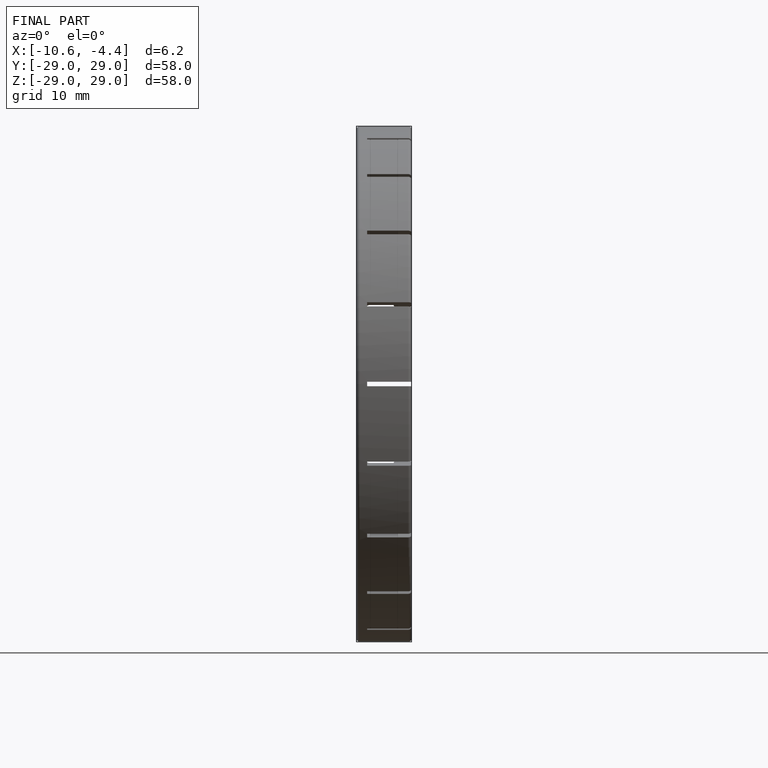
[diagram: finished part — front view with bounding-box wireframe]
